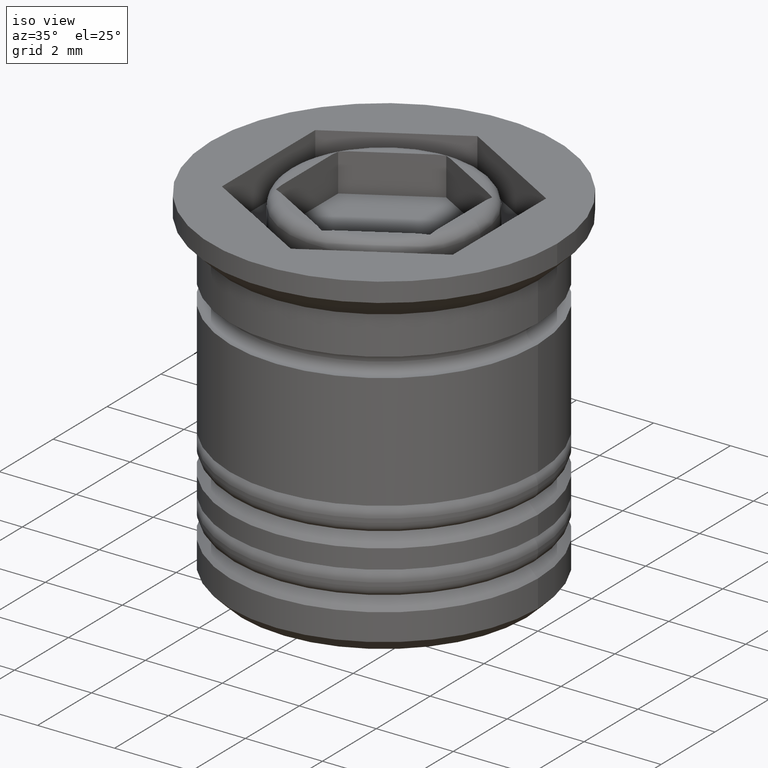
[diagram: clean part render]
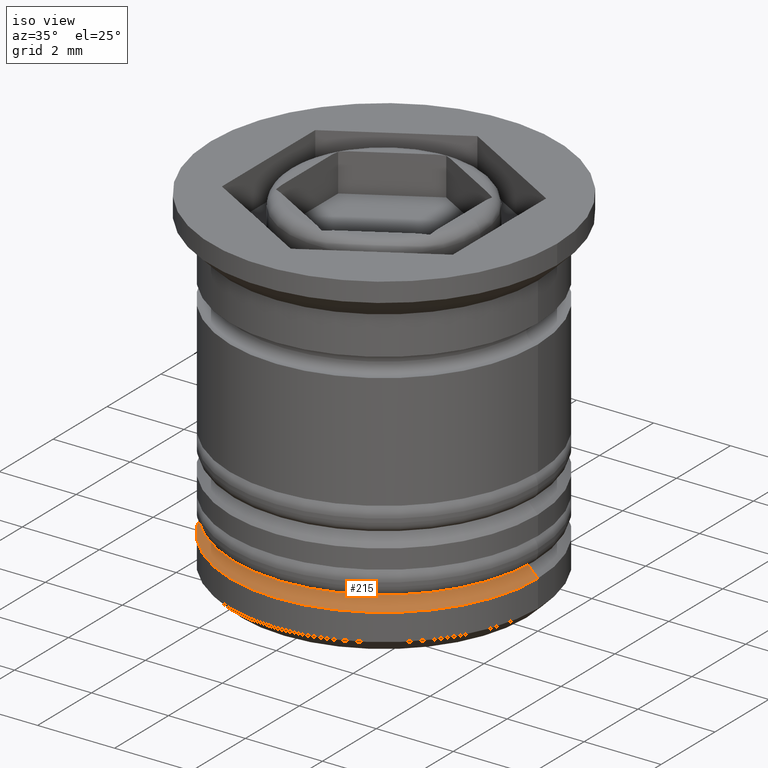
[diagram: same view with one face highlighted and labeled with its STEP entity id]
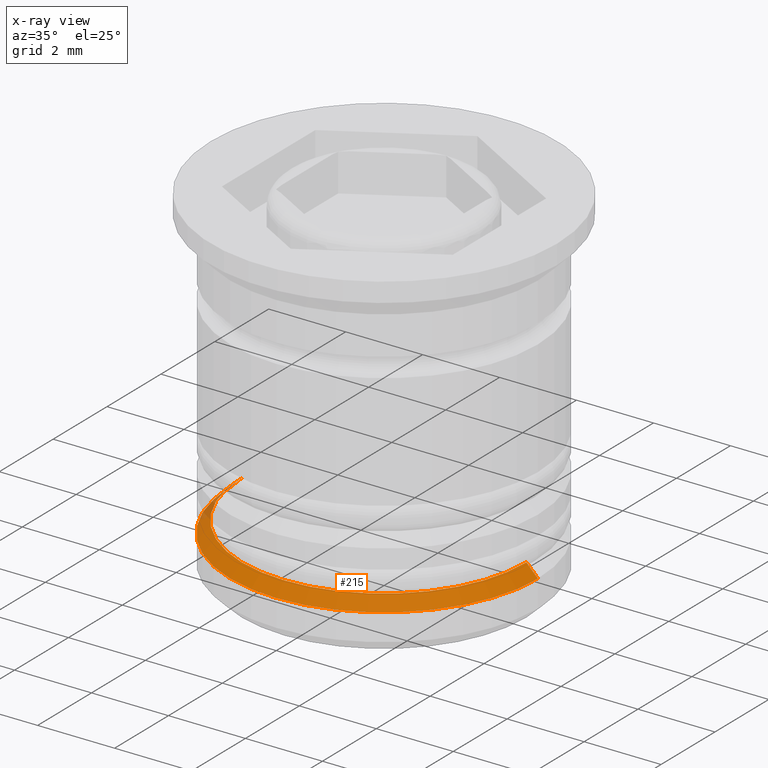
[diagram: x-ray of the same camera — body ghosted, the highlighted face saturated]
A machine part, iso view. The second image highlights one B-rep face of the part: STEP entity #215.
The next image is the same camera in x-ray: the body ghosted, the highlighted face saturated — about 2% of this face is hidden behind the body in this view.
In plain terms, the highlighted conical surface has half-angle 45 deg.
Its self-contained STEP definition (entity closure, byte-faithful):
#62 = EDGE_CURVE ( 'NONE', #1187, #1393, #565, .T. ) ;
#67 = CIRCLE ( 'NONE', #979, 3.700000000000000178 ) ;
#77 = ORIENTED_EDGE ( 'NONE', *, *, #801, .F. ) ;
#127 = DIRECTION ( 'NONE',  ( -1.000000000000000000, 0.000000000000000000, 0.000000000000000000 ) ) ;
#215 = ADVANCED_FACE ( 'NONE', ( #600 ), #1003, .T. ) ;
#249 = CARTESIAN_POINT ( 'NONE',  ( 4.000000000000000888, 0.000000000000000000, -8.000000000000003553 ) ) ;
#280 = EDGE_LOOP ( 'NONE', ( #1351, #77, #781, #1271 ) ) ;
#410 = CARTESIAN_POINT ( 'NONE',  ( 0.000000000000000000, 0.000000000000000000, -8.000000000000003553 ) ) ;
#419 = DIRECTION ( 'NONE',  ( 0.7071067811865507924, 8.659560562354974766E-17, -0.7071067811865441310 ) ) ;
#426 = CARTESIAN_POINT ( 'NONE',  ( 3.499999999999992450, 4.286263797015726734E-16, -7.500000000000000000 ) ) ;
#448 = DIRECTION ( 'NONE',  ( -0.000000000000000000, -0.000000000000000000, 1.000000000000000000 ) ) ;
#537 = CARTESIAN_POINT ( 'NONE',  ( 3.700000000000000178, 0.000000000000000000, -7.700000000000005507 ) ) ;
#565 = LINE ( 'NONE', #887, #1273 ) ;
#567 = LINE ( 'NONE', #426, #569 ) ;
#569 = VECTOR ( 'NONE', #419, 1000.000000000000000 ) ;
#600 = FACE_OUTER_BOUND ( 'NONE', #280, .T. ) ;
#731 = DIRECTION ( 'NONE',  ( -0.7071067811865507924, 0.000000000000000000, -0.7071067811865441310 ) ) ;
#759 = DIRECTION ( 'NONE',  ( 0.000000000000000000, 0.000000000000000000, -1.000000000000000000 ) ) ;
#765 = CARTESIAN_POINT ( 'NONE',  ( -4.000000000000000888, 4.898587196589413815E-16, -8.000000000000003553 ) ) ;
#772 = DIRECTION ( 'NONE',  ( -1.000000000000000000, 0.000000000000000000, 0.000000000000000000 ) ) ;
#781 = ORIENTED_EDGE ( 'NONE', *, *, #62, .T. ) ;
#801 = EDGE_CURVE ( 'NONE', #1187, #1933, #67, .T. ) ;
#887 = CARTESIAN_POINT ( 'NONE',  ( -3.499999999999992450, 0.000000000000000000, -7.500000000000000000 ) ) ;
#956 = CARTESIAN_POINT ( 'NONE',  ( 0.000000000000000000, 0.000000000000000000, -7.700000000000005507 ) ) ;
#976 = AXIS2_PLACEMENT_3D ( 'NONE', #1360, #759, #127 ) ;
#979 = AXIS2_PLACEMENT_3D ( 'NONE', #956, #448, #772 ) ;
#994 = VERTEX_POINT ( 'NONE', #249 ) ;
#1003 = CONICAL_SURFACE ( 'NONE', #976, 3.499999999999992450, 0.7853981633974530530 ) ;
#1038 = DIRECTION ( 'NONE',  ( 0.000000000000000000, 0.000000000000000000, -1.000000000000000000 ) ) ;
#1043 = EDGE_CURVE ( 'NONE', #1933, #994, #567, .T. ) ;
#1187 = VERTEX_POINT ( 'NONE', #1867 ) ;
#1271 = ORIENTED_EDGE ( 'NONE', *, *, #1639, .F. ) ;
#1273 = VECTOR ( 'NONE', #731, 1000.000000000000000 ) ;
#1351 = ORIENTED_EDGE ( 'NONE', *, *, #1043, .F. ) ;
#1360 = CARTESIAN_POINT ( 'NONE',  ( 0.000000000000000000, 0.000000000000000000, -7.500000000000000000 ) ) ;
#1393 = VERTEX_POINT ( 'NONE', #765 ) ;
#1468 = DIRECTION ( 'NONE',  ( -1.000000000000000000, 0.000000000000000000, 0.000000000000000000 ) ) ;
#1639 = EDGE_CURVE ( 'NONE', #994, #1393, #1664, .T. ) ;
#1664 = CIRCLE ( 'NONE', #1900, 4.000000000000000888 ) ;
#1867 = CARTESIAN_POINT ( 'NONE',  ( -3.700000000000000178, 4.531193156845206201E-16, -7.700000000000005507 ) ) ;
#1900 = AXIS2_PLACEMENT_3D ( 'NONE', #410, #1038, #1468 ) ;
#1933 = VERTEX_POINT ( 'NONE', #537 ) ;